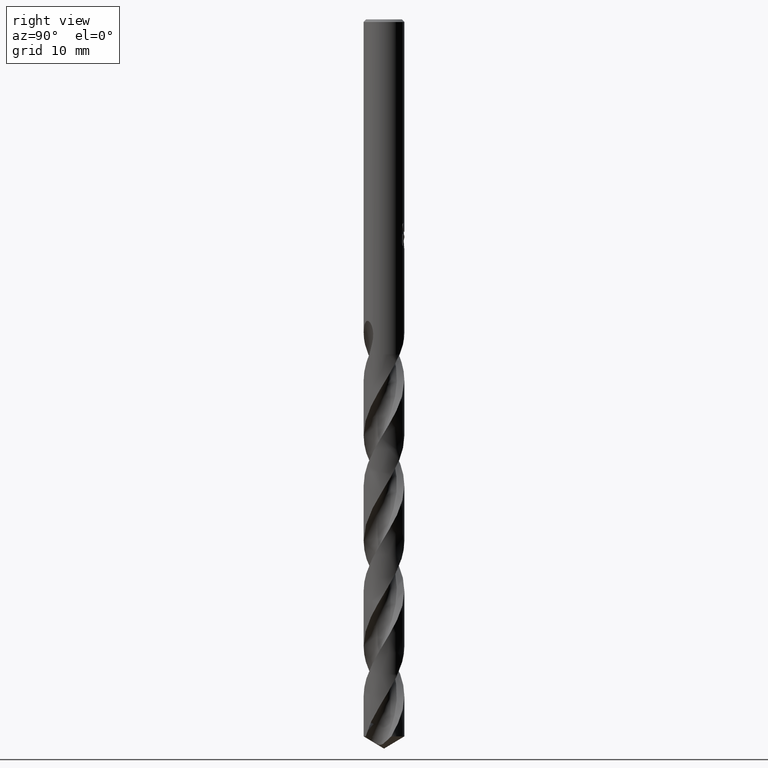
[diagram: clean part render]
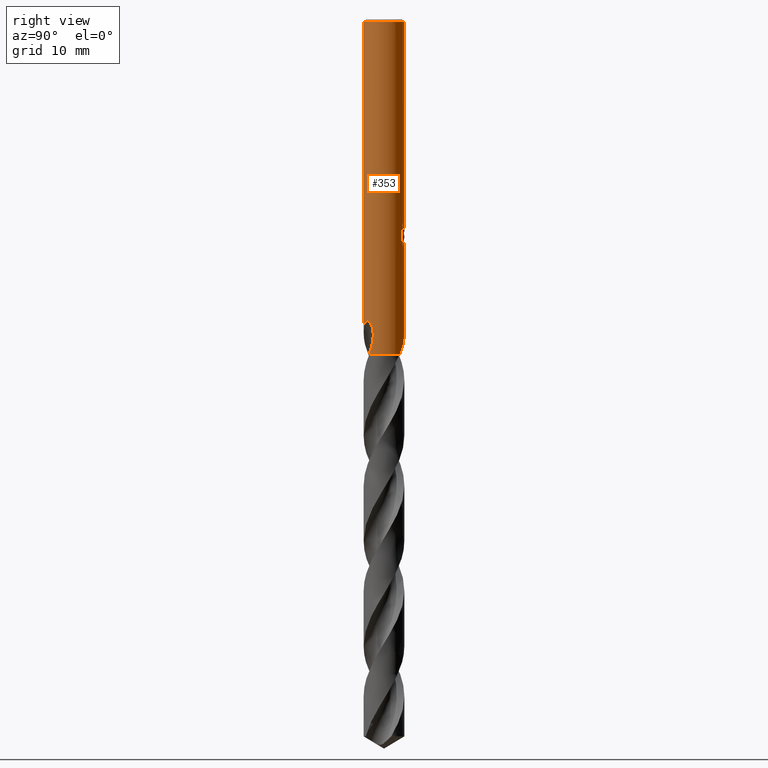
[diagram: same view with one face highlighted and labeled with its STEP entity id]
A machine part, right view. The second image highlights one B-rep face of the part: STEP entity #353.
In plain terms, the highlighted cylindrical surface (edge-blend (fillet) strip) has radius 2.4 mm, axis along (-0, -0, 1).
Its self-contained STEP definition (entity closure, byte-faithful):
#291=VERTEX_POINT('',#791);
#313=VERTEX_POINT('',#816);
#331=EDGE_CURVE('',#525,#567,#834,.T.);
#351=EDGE_CURVE('',#655,#731,#855,.T.);
#353=ADVANCED_FACE('',(#857),#858,.T.);
#371=EDGE_CURVE('',#655,#683,#879,.T.);
#379=EDGE_CURVE('',#531,#609,#887,.T.);
#381=EDGE_CURVE('',#739,#731,#889,.T.);
#383=EDGE_CURVE('',#313,#291,#891,.T.);
#431=EDGE_CURVE('',#531,#291,#943,.T.);
#445=EDGE_CURVE('',#313,#509,#958,.T.);
#451=VERTEX_POINT('',#966);
#453=VERTEX_POINT('',#968);
#463=EDGE_CURVE('',#487,#451,#980,.T.);
#487=VERTEX_POINT('',#1007);
#499=VERTEX_POINT('',#1020);
#509=VERTEX_POINT('',#1030);
#525=VERTEX_POINT('',#1048);
#529=EDGE_CURVE('',#739,#499,#1053,.T.);
#531=VERTEX_POINT('',#1055);
#533=EDGE_CURVE('',#499,#509,#1057,.T.);
#535=EDGE_CURVE('',#609,#487,#1059,.T.);
#545=EDGE_CURVE('',#453,#683,#1070,.T.);
#567=VERTEX_POINT('',#1095);
#605=EDGE_CURVE('',#567,#453,#1135,.T.);
#609=VERTEX_POINT('',#1139);
#655=VERTEX_POINT('',#1188);
#683=VERTEX_POINT('',#1221);
#721=EDGE_CURVE('',#451,#525,#1262,.T.);
#731=VERTEX_POINT('',#1273);
#739=VERTEX_POINT('',#1281);
#791=CARTESIAN_POINT('',(-7.76303869277906E-013,2.4,-36.9538483412922));
#816=CARTESIAN_POINT('',(1.52694487400701,1.85160453438193,-39.5));
#834=LINE('',#2607,#2608);
#855=CIRCLE('',#3004,2.4);
#857=FACE_OUTER_BOUND('',#3006,.T.);
#858=CYLINDRICAL_SURFACE('',#3007,2.4);
#879=LINE('',#3374,#3375);
#887=B_SPLINE_CURVE_WITH_KNOTS('',3,(#3574,#3575,#3576,#3577,#3578,#3579,#3580,#3581,#3582,#3583,#3584,#3585,#3586,#3587),.UNSPECIFIED.,.F.,.F.,(4,2,2,2,2,2,4),(5.76801708794981,6.41334064351288,6.73275632162653,7.05217199974018,7.37158767785382,7.69100335596747,8.00805061096728),.UNSPECIFIED.);
#889=LINE('',#3590,#3591);
#891=B_SPLINE_CURVE_WITH_KNOTS('',3,(#3594,#3595,#3596,#3597,#3598,#3599,#3600,#3601,#3602,#3603,#3604,#3605,#3606,#3607,#3608,#3609,#3610,#3611,#3612,#3613,#3614,#3615,#3616,#3617,#3618,#3619,#3620,#3621),.UNSPECIFIED.,.F.,.F.,(4,2,2,2,2,2,2,2,2,2,2,2,2,4),(0.0,1.17222975018862,1.8139465020566,2.39572527792866,3.0719323345183,3.88393910678375,4.58546733432489,4.90421854191198,5.13723203398082,5.35776064398057,5.63755890597906,6.04695299683767,6.62892809648461,7.29027691519616),.UNSPECIFIED.);
#943=LINE('',#4181,#4182);
#958=CIRCLE('',#4758,2.4);
#966=CARTESIAN_POINT('',(0.873560781758956,2.23537280125099,-26.7587351791531));
#968=CARTESIAN_POINT('',(0.799431726384364,2.26294253458856,-24.000000276873));
#980=LINE('',#4783,#4784);
#1007=CARTESIAN_POINT('',(0.873560781758957,2.23537280125099,-25.3198931596091));
#1020=CARTESIAN_POINT('',(1.95274119190494,-1.39527840857574,-38.1908074526765));
#1030=CARTESIAN_POINT('',(1.66950500714076,-1.72416734429461,-39.5));
#1048=CARTESIAN_POINT('',(1.33721006514658,1.99295490206645,-26.2901657003257));
#1053=B_SPLINE_CURVE_WITH_KNOTS('',3,(#5321,#5322,#5323,#5324,#5325,#5326,#5327,#5328,#5329,#5330,#5331,#5332,#5333,#5334,#5335,#5336,#5337,#5338,#5339,#5340,#5341,#5342,#5343,#5344,#5345,#5346,#5347,#5348),.UNSPECIFIED.,.F.,.F.,(4,2,2,2,2,2,2,2,2,2,2,2,2,4),(0.0,1.17222975018858,1.81394650205652,2.39572527792856,3.07193233451819,3.88393910678375,4.58546733432496,4.90421854191207,5.13723203398094,5.35776064398072,5.63755890597926,6.04695299683881,6.62892809648785,7.29027691520148),.UNSPECIFIED.);
#1055=CARTESIAN_POINT('',(-1.44945831354929E-017,2.4,-27.0310253601033));
#1057=B_SPLINE_CURVE_WITH_KNOTS('',3,(#5353,#5354,#5355,#5356),.UNSPECIFIED.,.F.,.F.,(4,4),(0.0,1.37406646599395),.UNSPECIFIED.);
#1059=ELLIPSE('',#5359,7.31518697608746,2.4);
#1070=B_SPLINE_CURVE_WITH_KNOTS('',3,(#5527,#5528,#5529,#5530,#5531,#5532,#5533,#5534,#5535,#5536,#5537,#5538,#5539,#5540,#5541,#5542,#5543,#5544,#5545,#5546,#5547,#5548,#5549,#5550,#5551,#5552,#5553),.UNSPECIFIED.,.F.,.F.,(4,2,3,2,2,2,2,2,2,2,2,2,4),(-0.545917616895485,-0.272958808447743,0.0,0.273846949123707,0.547693898247415,0.822178558786441,1.09666321932547,1.36829180016332,1.63992038100117,1.91170915836663,2.18349793573209,2.45583696079813,2.72817598586417),.UNSPECIFIED.);
#1095=CARTESIAN_POINT('',(1.33721006514658,1.99295490206645,-24.5150484364821));
#1135=B_SPLINE_CURVE_WITH_KNOTS('',3,(#6739,#6740,#6741,#6742,#6743,#6744,#6745,#6746),.UNSPECIFIED.,.F.,.F.,(4,2,2,4),(0.643097298770997,1.28619459754199,1.60324182547399,1.92028905340599),.UNSPECIFIED.);
#1139=CARTESIAN_POINT('',(0.29010312703583,2.38240218596358,-26.9998328990228));
#1188=CARTESIAN_POINT('',(0.0,2.4,-0.300000000000001));
#1221=CARTESIAN_POINT('',(-2.60338784749601E-016,2.4,-25.0232688117743));
#1262=B_SPLINE_CURVE_WITH_KNOTS('',3,(#8157,#8158,#8159,#8160,#8161,#8162,#8163,#8164),.UNSPECIFIED.,.F.,.F.,(4,2,2,4),(8.32508314056176,8.64213035848227,8.95917757640279,9.60227485160515),.UNSPECIFIED.);
#1273=CARTESIAN_POINT('',(2.93905524917371E-016,-2.4,-0.300000000000001));
#1281=CARTESIAN_POINT('',(7.75637735463131E-013,-2.4,-36.9538483412922));
#2607=CARTESIAN_POINT('',(1.33721006514658,1.99295490206645,-25.4026070684039));
#2608=VECTOR('',#8795,1.0);
#3004=AXIS2_PLACEMENT_3D('',#8814,#8815,#8816);
#3006=EDGE_LOOP('',(#8818,#8819,#8820,#8821,#8822,#8823,#8824,#8825,#8826,#8827,#8828,#8829,#8830,#8831,#8832));
#3007=AXIS2_PLACEMENT_3D('',#8833,#8834,#8835);
#3374=CARTESIAN_POINT('',(-2.93905524917371E-016,2.4,-34.25));
#3375=VECTOR('',#8864,1.0);
#3574=CARTESIAN_POINT('',(-1.52886509704232,1.85001932828979,-26.0358842819497));
#3575=CARTESIAN_POINT('',(-1.4451889182321,1.91916956458062,-26.234149577602));
#3576=CARTESIAN_POINT('',(-1.32216213364511,2.0095197234206,-26.4118335964245));
#3577=CARTESIAN_POINT('',(-1.11117667507629,2.12878496185512,-26.6231969595796));
#3578=CARTESIAN_POINT('',(-1.03194391314936,2.16888262033834,-26.6896401504216));
#3579=CARTESIAN_POINT('',(-0.857919758016401,2.24342010096352,-26.8081193788825));
#3580=CARTESIAN_POINT('',(-0.763116470112257,2.27782133964177,-26.8601622154172));
#3581=CARTESIAN_POINT('',(-0.563206977168111,2.33529757419455,-26.9447718283433));
#3582=CARTESIAN_POINT('',(-0.457888196586337,2.35840153504388,-26.9774069709458));
#3583=CARTESIAN_POINT('',(-0.243701107091988,2.39004794336107,-27.0206665689958));
#3584=CARTESIAN_POINT('',(-0.134826627126228,2.39857416907501,-27.0312723335086));
#3585=CARTESIAN_POINT('',(0.0773128691919439,2.40108131761548,-27.0312723335086));
#3586=CARTESIAN_POINT('',(0.18559237328218,2.39522600179619,-27.0208201784706));
#3587=CARTESIAN_POINT('',(0.292273228662952,2.38213693137211,-26.999398676565));
#3590=CARTESIAN_POINT('',(2.93905524917371E-016,-2.4,-34.25));
#3591=VECTOR('',#8865,1.0);
#3594=CARTESIAN_POINT('',(1.526944874007,1.85160453438193,-39.5));
#3595=CARTESIAN_POINT('',(1.36881635764356,1.98200685464633,-39.1673276466972));
#3596=CARTESIAN_POINT('',(1.1872011430005,2.09782454063551,-38.8569875467717));
#3597=CARTESIAN_POINT('',(0.870519935023232,2.23992709063008,-38.338325146355));
#3598=CARTESIAN_POINT('',(0.756382894625046,2.28086728367836,-38.1555283154819));
#3599=CARTESIAN_POINT('',(0.535347688203262,2.34207099666166,-37.8015459942232));
#3600=CARTESIAN_POINT('',(0.429425199500449,2.36369423415994,-37.6319926917694));
#3601=CARTESIAN_POINT('',(0.200093363097676,2.39487784077103,-37.266489052368));
#3602=CARTESIAN_POINT('',(0.0747553262638754,2.40216772899283,-37.0676597454019));
#3603=CARTESIAN_POINT('',(-0.203548916658045,2.39617129948185,-36.6424324461198));
#3604=CARTESIAN_POINT('',(-0.368582587967809,2.37797408665517,-36.4004748889954));
#3605=CARTESIAN_POINT('',(-0.686379980727777,2.30471965530067,-36.0023012735815));
#3606=CARTESIAN_POINT('',(-0.861813894169694,2.24910360558823,-35.8084786508854));
#3607=CARTESIAN_POINT('',(-1.12756126605223,2.12063888533332,-35.6266766545539));
#3608=CARTESIAN_POINT('',(-1.21568114097786,2.07205606943432,-35.5816738636696));
#3609=CARTESIAN_POINT('',(-1.37009609491691,1.97202274120625,-35.5471221764691));
#3610=CARTESIAN_POINT('',(-1.4334343433916,1.92646414760842,-35.5464948769314));
#3611=CARTESIAN_POINT('',(-1.55140852016881,1.83262221733824,-35.576808023638));
#3612=CARTESIAN_POINT('',(-1.60300585672653,1.7872971729003,-35.6052158695695));
#3613=CARTESIAN_POINT('',(-1.70801107502557,1.68796685563802,-35.6940886405962));
#3614=CARTESIAN_POINT('',(-1.75659175602975,1.63649010578793,-35.7597036888183));
#3615=CARTESIAN_POINT('',(-1.85610097650786,1.52408707116669,-35.9393746963201));
#3616=CARTESIAN_POINT('',(-1.90366189183752,1.46287741108257,-36.0726387956972));
#3617=CARTESIAN_POINT('',(-1.99308420046158,1.33999073829854,-36.4454749429375));
#3618=CARTESIAN_POINT('',(-2.025402705289,1.28766257948043,-36.7109972466991));
#3619=CARTESIAN_POINT('',(-2.0460077862831,1.25470300533577,-37.3455804940171));
#3620=CARTESIAN_POINT('',(-2.03133025893727,1.28529024600964,-37.7438149088508));
#3621=CARTESIAN_POINT('',(-1.95274119190494,1.39527840857574,-38.1908074526765));
#4181=CARTESIAN_POINT('',(-2.93905524917371E-016,2.4,-34.25));
#4182=VECTOR('',#8910,1.0);
#4758=AXIS2_PLACEMENT_3D('',#8923,#8924,#8925);
#4783=CARTESIAN_POINT('',(0.873560781758957,2.23537280125099,-26.0393141693811));
#4784=VECTOR('',#8977,1.0);
#5321=CARTESIAN_POINT('',(-1.526944874007,-1.85160453438193,-39.5));
#5322=CARTESIAN_POINT('',(-1.36881635764357,-1.98200685464633,-39.1673276466972));
#5323=CARTESIAN_POINT('',(-1.18720114300051,-2.0978245406355,-38.8569875467717));
#5324=CARTESIAN_POINT('',(-0.870519935023232,-2.23992709063008,-38.338325146355));
#5325=CARTESIAN_POINT('',(-0.756382894625044,-2.28086728367836,-38.1555283154818));
#5326=CARTESIAN_POINT('',(-0.535347688203261,-2.34207099666166,-37.8015459942232));
#5327=CARTESIAN_POINT('',(-0.429425199500448,-2.36369423415994,-37.6319926917694));
#5328=CARTESIAN_POINT('',(-0.200093363097678,-2.39487784077103,-37.266489052368));
#5329=CARTESIAN_POINT('',(-0.0747553262638788,-2.40216772899283,-37.0676597454019));
#5330=CARTESIAN_POINT('',(0.203548916658069,-2.39617129948185,-36.6424324461197));
#5331=CARTESIAN_POINT('',(0.368582587967815,-2.37797408665516,-36.4004748889954));
#5332=CARTESIAN_POINT('',(0.686379980727755,-2.30471965530068,-36.0023012735815));
#5333=CARTESIAN_POINT('',(0.861813894169687,-2.24910360558824,-35.8084786508854));
#5334=CARTESIAN_POINT('',(1.12756126605224,-2.12063888533332,-35.6266766545539));
#5335=CARTESIAN_POINT('',(1.21568114097786,-2.07205606943432,-35.5816738636696));
#5336=CARTESIAN_POINT('',(1.37009609491691,-1.97202274120625,-35.5471221764691));
#5337=CARTESIAN_POINT('',(1.4334343433916,-1.92646414760842,-35.5464948769314));
#5338=CARTESIAN_POINT('',(1.55140852016881,-1.83262221733824,-35.576808023638));
#5339=CARTESIAN_POINT('',(1.60300585672653,-1.78729717290031,-35.6052158695695));
#5340=CARTESIAN_POINT('',(1.70801107502557,-1.68796685563802,-35.6940886405962));
#5341=CARTESIAN_POINT('',(1.75659175602975,-1.63649010578793,-35.7597036888183));
#5342=CARTESIAN_POINT('',(1.85610097650798,-1.52408707116655,-35.9393746963203));
#5343=CARTESIAN_POINT('',(1.9036618918376,-1.46287741108246,-36.0726387956975));
#5344=CARTESIAN_POINT('',(1.99308420046153,-1.33999073829861,-36.4454749429373));
#5345=CARTESIAN_POINT('',(2.025402705289,-1.28766257948045,-36.7109972466989));
#5346=CARTESIAN_POINT('',(2.0460077862831,-1.25470300533577,-37.3455804940173));
#5347=CARTESIAN_POINT('',(2.03133025893725,-1.28529024600967,-37.7438149088509));
#5348=CARTESIAN_POINT('',(1.95274119190494,-1.39527840857574,-38.1908074526765));
#5353=CARTESIAN_POINT('',(1.95274119195757,-1.3952784085021,-38.1908074527055));
#5354=CARTESIAN_POINT('',(1.87566230489037,-1.50315302111648,-38.6292207370572));
#5355=CARTESIAN_POINT('',(1.78282597699422,-1.61443905880629,-39.0702089990984));
#5356=CARTESIAN_POINT('',(1.66950500714076,-1.72416734429461,-39.5));
#5359=AXIS2_PLACEMENT_3D('',#9072,#9073,#9074);
#5527=CARTESIAN_POINT('',(0.666069375619499,2.30572148943923,-23.8145457463379));
#5528=CARTESIAN_POINT('',(0.728958925380616,2.28755415945846,-23.877738735558));
#5529=CARTESIAN_POINT('',(0.783840976643435,2.2687247050022,-23.9578023371602));
#5530=CARTESIAN_POINT('',(0.857081347594368,2.24208164484468,-24.1342238676859));
#5531=CARTESIAN_POINT('',(0.875400981188566,2.23465279677495,-24.2306557431042));
#5532=CARTESIAN_POINT('',(0.875400981188567,2.23465279677495,-24.3216420125868));
#5533=CARTESIAN_POINT('',(0.875400981188567,2.23465279677495,-24.4129243289613));
#5534=CARTESIAN_POINT('',(0.856963503606219,2.24213066821495,-24.5096452557382));
#5535=CARTESIAN_POINT('',(0.783290166566969,2.26891886570554,-24.6865044928324));
#5536=CARTESIAN_POINT('',(0.728092993930623,2.28784026092741,-24.766717604746));
#5537=CARTESIAN_POINT('',(0.601454702421889,2.32435042752188,-24.8933558962547));
#5538=CARTESIAN_POINT('',(0.521223756959816,2.344440534326,-24.9484942812439));
#5539=CARTESIAN_POINT('',(0.344441812503098,2.37685411035002,-25.0220959681316));
#5540=CARTESIAN_POINT('',(0.247826480942161,2.38892305226913,-25.0405166027747));
#5541=CARTESIAN_POINT('',(0.0661763007170103,2.40079543209557,-25.0405166027747));
#5542=CARTESIAN_POINT('',(-0.0302437425292107,2.40144728287231,-25.0224206401083));
#5543=CARTESIAN_POINT('',(-0.207381704060372,2.39266724925279,-24.9489733933957));
#5544=CARTESIAN_POINT('',(-0.288119822194078,2.38351221660587,-24.8936379944812));
#5545=CARTESIAN_POINT('',(-0.415507143994147,2.36463574801085,-24.7662506726811));
#5546=CARTESIAN_POINT('',(-0.470755323370164,2.35367806973536,-24.685616625532));
#5547=CARTESIAN_POINT('',(-0.544184593961257,2.33779259139081,-24.5086284655894));
#5548=CARTESIAN_POINT('',(-0.562348199187247,2.33318762701821,-24.4122382717086));
#5549=CARTESIAN_POINT('',(-0.562348199187246,2.33318762701821,-24.2308623375648));
#5550=CARTESIAN_POINT('',(-0.544111737317428,2.33781177913533,-24.1342906866721));
#5551=CARTESIAN_POINT('',(-0.470410306816013,2.35374926405356,-23.9570261413922));
#5552=CARTESIAN_POINT('',(-0.414962867537324,2.36473747391099,-23.8762968790632));
#5553=CARTESIAN_POINT('',(-0.35102432895343,2.37419079277189,-23.8125517032193));
#6739=CARTESIAN_POINT('',(1.47205139560239,1.89553810004047,-24.7691193308637));
#6740=CARTESIAN_POINT('',(1.3880911193952,1.96074043425472,-24.5702588831449));
#6741=CARTESIAN_POINT('',(1.26437044871384,2.04626559238186,-24.3918184703743));
#6742=CARTESIAN_POINT('',(1.05224852118805,2.15848380903716,-24.1800587140521));
#6743=CARTESIAN_POINT('',(0.972836380130912,2.19599092950123,-24.1137199071949));
#6744=CARTESIAN_POINT('',(0.798594530919049,2.26517848303812,-23.9955635537066));
#6745=CARTESIAN_POINT('',(0.703753547036213,2.2968187031253,-23.9437390917777));
#6746=CARTESIAN_POINT('',(0.603897483245097,2.32278019401971,-23.9016752051326));
#8157=CARTESIAN_POINT('',(0.603897506203539,2.32278018805076,-26.9035389152837));
#8158=CARTESIAN_POINT('',(0.703753566664176,2.29681869696855,-26.8614750299533));
#8159=CARTESIAN_POINT('',(0.798594547357582,2.26517847712152,-26.8096505696598));
#8160=CARTESIAN_POINT('',(0.972836390708323,2.1959909246904,-26.6914942198914));
#8161=CARTESIAN_POINT('',(1.05224852909309,2.15848380509005,-26.6251554151184));
#8162=CARTESIAN_POINT('',(1.26437044878998,2.04626559186518,-26.4133956660534));
#8163=CARTESIAN_POINT('',(1.38809111491526,1.96074043719531,-26.2349552595973));
#8164=CARTESIAN_POINT('',(1.47205138801885,1.89553810592976,-26.0360948188935));
#8795=DIRECTION('',(-0.0,-0.0,1.0));
#8814=CARTESIAN_POINT('',(0.0,0.0,-0.300000000000001));
#8815=DIRECTION('',(0.0,0.0,-1.0));
#8816=DIRECTION('',(0.0,1.0,0.0));
#8818=ORIENTED_EDGE('',*,*,#371,.F.);
#8819=ORIENTED_EDGE('',*,*,#351,.T.);
#8820=ORIENTED_EDGE('',*,*,#381,.F.);
#8821=ORIENTED_EDGE('',*,*,#529,.T.);
#8822=ORIENTED_EDGE('',*,*,#533,.T.);
#8823=ORIENTED_EDGE('',*,*,#445,.F.);
#8824=ORIENTED_EDGE('',*,*,#383,.T.);
#8825=ORIENTED_EDGE('',*,*,#431,.F.);
#8826=ORIENTED_EDGE('',*,*,#379,.T.);
#8827=ORIENTED_EDGE('',*,*,#535,.T.);
#8828=ORIENTED_EDGE('',*,*,#463,.T.);
#8829=ORIENTED_EDGE('',*,*,#721,.T.);
#8830=ORIENTED_EDGE('',*,*,#331,.T.);
#8831=ORIENTED_EDGE('',*,*,#605,.T.);
#8832=ORIENTED_EDGE('',*,*,#545,.T.);
#8833=CARTESIAN_POINT('',(0.0,0.0,-34.25));
#8834=DIRECTION('',(-0.0,-0.0,1.0));
#8835=DIRECTION('',(0.0,1.0,0.0));
#8864=DIRECTION('',(0.0,0.0,-1.0));
#8865=DIRECTION('',(-0.0,-0.0,1.0));
#8910=DIRECTION('',(0.0,0.0,-1.0));
#8923=CARTESIAN_POINT('',(0.0,0.0,-39.5));
#8924=DIRECTION('',(0.0,0.0,-1.0));
#8925=DIRECTION('',(0.0,1.0,0.0));
#8977=DIRECTION('',(0.0,0.0,-1.0));
#9072=CARTESIAN_POINT('',(0.0,0.0,-27.8351219173269));
#9073=DIRECTION('',(0.944648353914092,0.0,-0.328084573619969));
#9074=DIRECTION('',(0.328084573619969,-0.0,0.944648353914092));